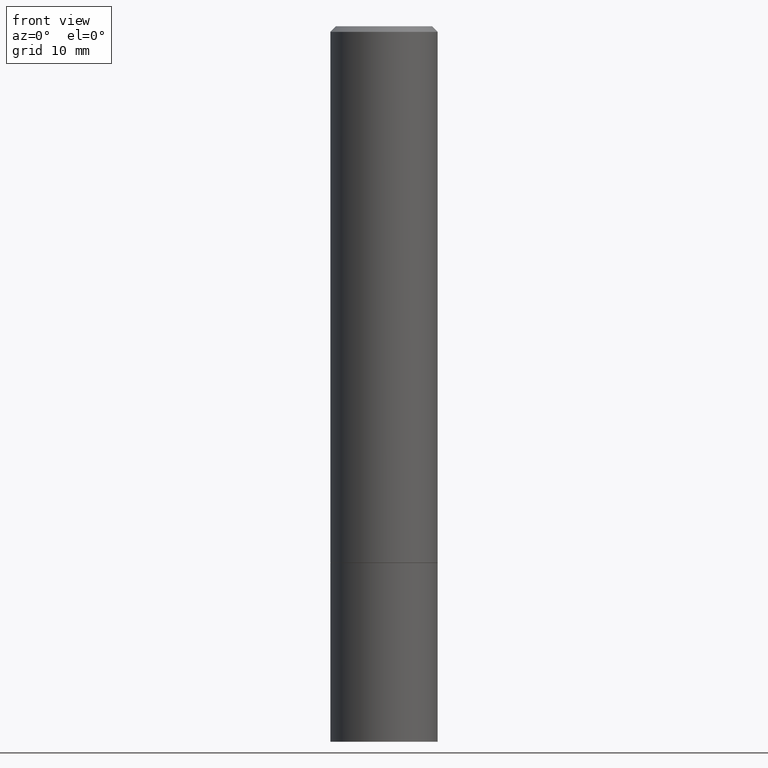
[diagram: clean part render]
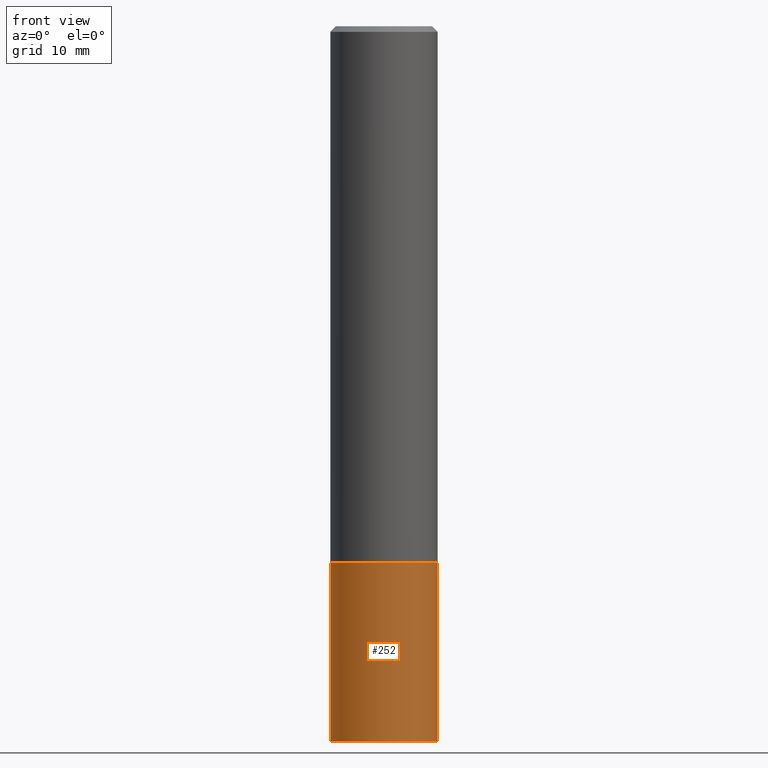
[diagram: same view with one face highlighted and labeled with its STEP entity id]
A machine part, front view. The second image highlights one B-rep face of the part: STEP entity #252.
In plain terms, the highlighted cylindrical surface (partial cylindrical patch) has radius 4.7625 mm, axis along (-0, 0, 1).
Its self-contained STEP definition (entity closure, byte-faithful):
#6 = ORIENTED_EDGE ( 'NONE', *, *, #381, .T. ) ;
#14 = CYLINDRICAL_SURFACE ( 'NONE', #179, 0.1875000000000000278 ) ;
#18 = EDGE_CURVE ( 'NONE', #119, #106, #156, .T. ) ;
#20 = ORIENTED_EDGE ( 'NONE', *, *, #144, .F. ) ;
#28 = AXIS2_PLACEMENT_3D ( 'NONE', #258, #251, #231 ) ;
#55 = VECTOR ( 'NONE', #234, 39.37007874015748143 ) ;
#61 = CARTESIAN_POINT ( 'NONE',  ( 0.1875000000000009992, -1.001504672169003342E-14, -2.500000000000000000 ) ) ;
#66 = DIRECTION ( 'NONE',  ( -2.445468806185136877E-29, 3.491481338843145188E-15, 1.000000000000000000 ) ) ;
#67 = VERTEX_POINT ( 'NONE', #215 ) ;
#86 = CARTESIAN_POINT ( 'NONE',  ( 4.585254011597131119E-29, -6.546527510330898707E-15, -1.875000000000000000 ) ) ;
#88 = CARTESIAN_POINT ( 'NONE',  ( 0.1875000000000000278, -7.855833012397073715E-15, -1.875000000000000000 ) ) ;
#102 = CARTESIAN_POINT ( 'NONE',  ( -0.1875000000000000278, 1.332267629550188046E-15, -9.223003294227947991E-30 ) ) ;
#105 = DIRECTION ( 'NONE',  ( -2.445468806185136597E-29, 3.491481338843145583E-15, 1.000000000000000000 ) ) ;
#106 = VERTEX_POINT ( 'NONE', #88 ) ;
#119 = VERTEX_POINT ( 'NONE', #61 ) ;
#143 = CARTESIAN_POINT ( 'NONE',  ( 0.000000000000000000, 0.000000000000000000, 0.000000000000000000 ) ) ;
#144 = EDGE_CURVE ( 'NONE', #67, #106, #288, .T. ) ;
#150 = CIRCLE ( 'NONE', #28, 0.1875000000000000278 ) ;
#156 = LINE ( 'NONE', #249, #187 ) ;
#161 = VERTEX_POINT ( 'NONE', #270 ) ;
#167 = FACE_OUTER_BOUND ( 'NONE', #297, .T. ) ;
#177 = DIRECTION ( 'NONE',  ( 1.000000000000000000, -6.982962677686266711E-15, 0.000000000000000000 ) ) ;
#179 = AXIS2_PLACEMENT_3D ( 'NONE', #143, #105, #257 ) ;
#187 = VECTOR ( 'NONE', #66, 39.37007874015748143 ) ;
#215 = CARTESIAN_POINT ( 'NONE',  ( -0.1875000000000000278, -6.305347799169194765E-15, -1.875000000000000000 ) ) ;
#231 = DIRECTION ( 'NONE',  ( 1.000000000000000000, -6.982962677686266711E-15, 0.000000000000000000 ) ) ;
#234 = DIRECTION ( 'NONE',  ( -2.445468806185136877E-29, 3.491481338843145188E-15, 1.000000000000000000 ) ) ;
#249 = CARTESIAN_POINT ( 'NONE',  ( 0.1875000000000000278, -1.309305502066175008E-15, 9.142831454617381013E-30 ) ) ;
#251 = DIRECTION ( 'NONE',  ( -2.445468806185136597E-29, 3.491481338843145583E-15, 1.000000000000000000 ) ) ;
#252 = ADVANCED_FACE ( 'NONE', ( #167 ), #14, .T. ) ;
#257 = DIRECTION ( 'NONE',  ( 1.000000000000000000, -6.982962677686265922E-15, 4.876176775795935793E-29 ) ) ;
#258 = CARTESIAN_POINT ( 'NONE',  ( 6.113672015462842613E-29, -8.728703347107864943E-15, -2.500000000000000000 ) ) ;
#262 = LINE ( 'NONE', #102, #55 ) ;
#270 = CARTESIAN_POINT ( 'NONE',  ( -0.1875000000000009992, -7.419397845041682046E-15, -2.500000000000000000 ) ) ;
#275 = DIRECTION ( 'NONE',  ( -2.445468806185136597E-29, 3.491481338843145583E-15, 1.000000000000000000 ) ) ;
#280 = ORIENTED_EDGE ( 'NONE', *, *, #18, .T. ) ;
#288 = CIRCLE ( 'NONE', #385, 0.1875000000000000278 ) ;
#289 = EDGE_CURVE ( 'NONE', #161, #67, #262, .T. ) ;
#297 = EDGE_LOOP ( 'NONE', ( #365, #6, #280, #20 ) ) ;
#365 = ORIENTED_EDGE ( 'NONE', *, *, #289, .F. ) ;
#381 = EDGE_CURVE ( 'NONE', #161, #119, #150, .T. ) ;
#385 = AXIS2_PLACEMENT_3D ( 'NONE', #86, #275, #177 ) ;